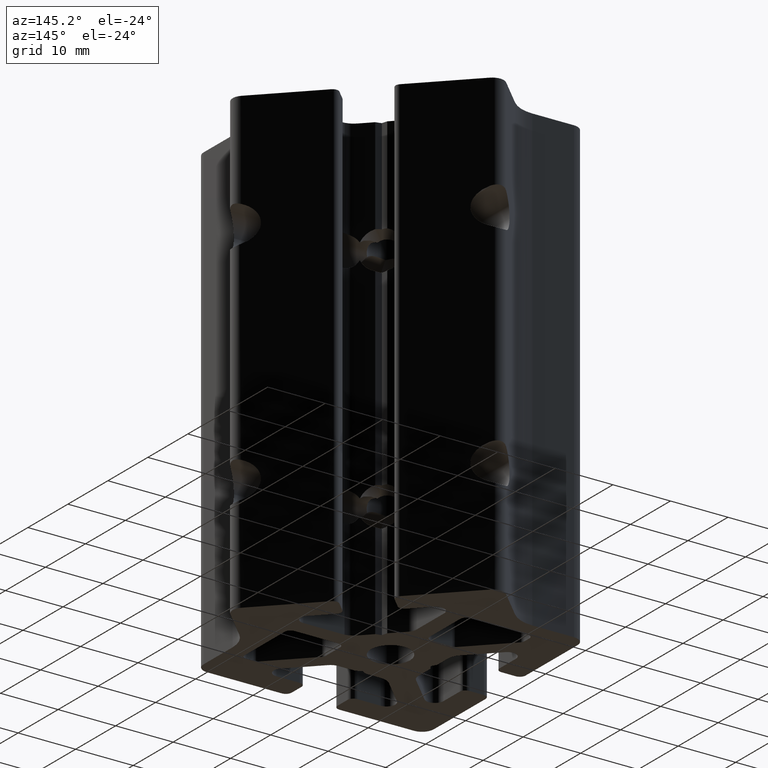
[diagram: clean part render]
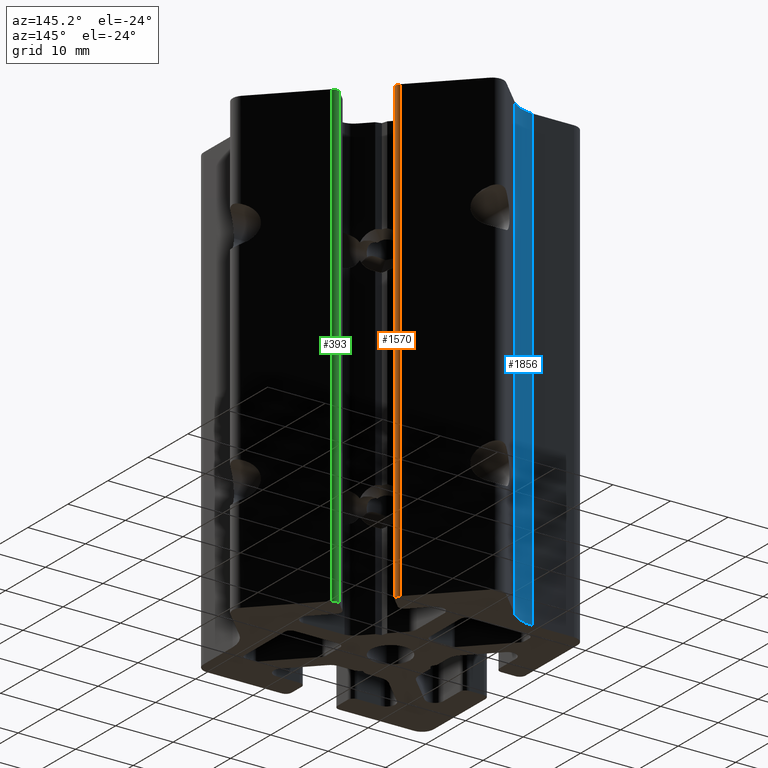
[diagram: same view with three faces highlighted in distinct colors, each labeled with its STEP entity id]
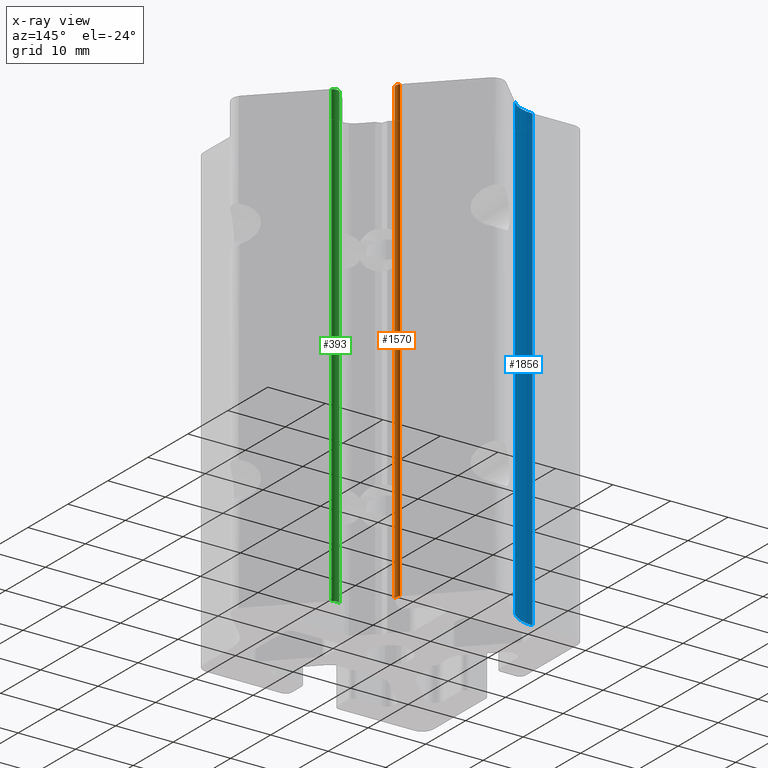
[diagram: x-ray of the same camera — body ghosted, the three highlighted faces saturated]
A machine part, auxiliary view with three faces highlighted in distinct colors.
The next image is the same camera in x-ray (body ghosted, the three faces saturated) — at least one of them is partly hidden behind the body in this view.
Their STEP definitions:

[orange] entity #1570 — the highlighted cylindrical surface (edge-blend (fillet) strip) has radius 0.9978 mm, axis along (0, 0, 1).
#1513=CARTESIAN_POINT('',(10.611185521892367,16.267987897816056,0.0));
#1514=VERTEX_POINT('',#1513);
#1521=CARTESIAN_POINT('',(10.611185521892367,16.267987897816056,79.999715220555601));
#1522=VERTEX_POINT('',#1521);
#1523=CARTESIAN_POINT('',(10.611185521892367,16.267987897816056,79.999715220555601));
#1524=DIRECTION('',(0.0,0.0,-1.0));
#1525=VECTOR('',#1524,79.999715220555601);
#1526=LINE('',#1523,#1525);
#1527=EDGE_CURVE('',#1522,#1514,#1526,.T.);
#1538=CARTESIAN_POINT('',(9.905607062647960,16.973568640208669,79.999715220555601));
#1539=DIRECTION('',(0.0,0.0,1.0));
#1540=DIRECTION('',(0.707105637140658,-0.707107925230587,0.0));
#1541=AXIS2_PLACEMENT_3D('',#1538,#1539,#1540);
#1542=CYLINDRICAL_SURFACE('',#1541,0.997840240812344);
#1543=ORIENTED_EDGE('',*,*,#1527,.T.);
#1544=CARTESIAN_POINT('',(10.611186443518363,17.679148460976648,0.0));
#1545=VERTEX_POINT('',#1544);
#1546=CARTESIAN_POINT('',(9.905607062647958,16.973568640208665,0.0));
#1547=DIRECTION('',(0.0,0.0,1.0));
#1548=DIRECTION('',(0.707106560761660,0.707107001611366,0.0));
#1549=AXIS2_PLACEMENT_3D('',#1546,#1547,#1548);
#1550=CIRCLE('',#1549,0.997840240812344);
#1551=EDGE_CURVE('',#1514,#1545,#1550,.T.);
#1552=ORIENTED_EDGE('',*,*,#1551,.T.);
#1553=CARTESIAN_POINT('',(10.611186443518363,17.679148460976648,79.999715220555601));
#1554=VERTEX_POINT('',#1553);
#1555=CARTESIAN_POINT('',(10.611186443518363,17.679148460976648,79.999715220555601));
#1556=DIRECTION('',(0.0,0.0,-1.0));
#1557=VECTOR('',#1556,79.999715220555601);
#1558=LINE('',#1555,#1557);
#1559=EDGE_CURVE('',#1554,#1545,#1558,.T.);
#1560=ORIENTED_EDGE('',*,*,#1559,.F.);
#1561=CARTESIAN_POINT('',(9.905607062647958,16.973568640208665,79.999715220555601));
#1562=DIRECTION('',(0.0,0.0,1.0));
#1563=DIRECTION('',(0.707106560761660,0.707107001611366,0.0));
#1564=AXIS2_PLACEMENT_3D('',#1561,#1562,#1563);
#1565=CIRCLE('',#1564,0.997840240812344);
#1566=EDGE_CURVE('',#1522,#1554,#1565,.T.);
#1567=ORIENTED_EDGE('',*,*,#1566,.F.);
#1568=EDGE_LOOP('',(#1543,#1552,#1560,#1567));
#1569=FACE_OUTER_BOUND('',#1568,.T.);
#1570=ADVANCED_FACE('',(#1569),#1542,.T.);

[blue] entity #1856 — the highlighted cylindrical surface (partial cylindrical patch) has radius 6 mm, axis along (0, 0, -1).
#1799=CARTESIAN_POINT('',(-6.526904061647201,21.757326569204906,0.0));
#1800=VERTEX_POINT('',#1799);
#1807=CARTESIAN_POINT('',(-6.526904061647201,21.757326569204906,79.999715220555601));
#1808=VERTEX_POINT('',#1807);
#1809=CARTESIAN_POINT('',(-6.526904061647201,21.757326569204906,79.999715220555601));
#1810=DIRECTION('',(0.0,0.0,-1.0));
#1811=VECTOR('',#1810,79.999715220555601);
#1812=LINE('',#1809,#1811);
#1813=EDGE_CURVE('',#1808,#1800,#1812,.T.);
#1824=CARTESIAN_POINT('',(-10.769525039279415,25.999990257382706,79.999715220555601));
#1825=DIRECTION('',(0.0,0.0,-1.0));
#1826=DIRECTION('',(0.707103221966839,-0.707110340388341,0.0));
#1827=AXIS2_PLACEMENT_3D('',#1824,#1825,#1826);
#1828=CYLINDRICAL_SURFACE('',#1827,6.000002327568382);
#1829=ORIENTED_EDGE('',*,*,#1813,.T.);
#1830=CARTESIAN_POINT('',(-10.769525039279415,19.999987929814324,0.0));
#1831=VERTEX_POINT('',#1830);
#1832=CARTESIAN_POINT('',(-10.769525039279415,25.999990257382706,0.0));
#1833=DIRECTION('',(0.0,0.0,-1.0));
#1834=DIRECTION('',(0.0,-1.0,0.0));
#1835=AXIS2_PLACEMENT_3D('',#1832,#1833,#1834);
#1836=CIRCLE('',#1835,6.000002327568382);
#1837=EDGE_CURVE('',#1800,#1831,#1836,.T.);
#1838=ORIENTED_EDGE('',*,*,#1837,.T.);
#1839=CARTESIAN_POINT('',(-10.769525039279415,19.999987929814324,79.999715220555601));
#1840=VERTEX_POINT('',#1839);
#1841=CARTESIAN_POINT('',(-10.769525039279415,19.999987929814324,79.999715220555601));
#1842=DIRECTION('',(0.0,0.0,-1.0));
#1843=VECTOR('',#1842,79.999715220555601);
#1844=LINE('',#1841,#1843);
#1845=EDGE_CURVE('',#1840,#1831,#1844,.T.);
#1846=ORIENTED_EDGE('',*,*,#1845,.F.);
#1847=CARTESIAN_POINT('',(-10.769525039279415,25.999990257382706,79.999715220555601));
#1848=DIRECTION('',(0.0,0.0,-1.0));
#1849=DIRECTION('',(0.0,-1.0,0.0));
#1850=AXIS2_PLACEMENT_3D('',#1847,#1848,#1849);
#1851=CIRCLE('',#1850,6.000002327568382);
#1852=EDGE_CURVE('',#1808,#1840,#1851,.T.);
#1853=ORIENTED_EDGE('',*,*,#1852,.F.);
#1854=EDGE_LOOP('',(#1829,#1838,#1846,#1853));
#1855=FACE_OUTER_BOUND('',#1854,.T.);
#1856=ADVANCED_FACE('',(#1855),#1828,.F.);

[green] entity #393 — the highlighted cylindrical surface (edge-blend (fillet) strip) has radius 0.9958 mm, axis along (0, 0, 1).
#336=CARTESIAN_POINT('',(17.682132614497277,10.608190095060309,0.0));
#337=VERTEX_POINT('',#336);
#344=CARTESIAN_POINT('',(17.682132614497277,10.608190095060309,79.999715220555601));
#345=VERTEX_POINT('',#344);
#346=CARTESIAN_POINT('',(17.682132614497277,10.608190095060309,79.999715220555601));
#347=DIRECTION('',(0.0,0.0,-1.0));
#348=VECTOR('',#347,79.999715220555601);
#349=LINE('',#346,#348);
#350=EDGE_CURVE('',#345,#337,#349,.T.);
#361=CARTESIAN_POINT('',(16.973625755238572,9.908510219913296,79.999715220555601));
#362=DIRECTION('',(0.0,0.0,1.0));
#363=DIRECTION('',(0.711525183838002,0.702660595710544,0.0));
#364=AXIS2_PLACEMENT_3D('',#361,#362,#363);
#365=CYLINDRICAL_SURFACE('',#364,0.995757951162019);
#366=ORIENTED_EDGE('',*,*,#350,.T.);
#367=CARTESIAN_POINT('',(16.269518555579452,10.612617419628350,0.0));
#368=VERTEX_POINT('',#367);
#369=CARTESIAN_POINT('',(16.973625755238572,9.908510219913296,0.0));
#370=DIRECTION('',(0.0,0.0,1.0));
#371=DIRECTION('',(-0.707106781158461,0.707106781214634,0.0));
#372=AXIS2_PLACEMENT_3D('',#369,#370,#371);
#373=CIRCLE('',#372,0.995757951162019);
#374=EDGE_CURVE('',#337,#368,#373,.T.);
#375=ORIENTED_EDGE('',*,*,#374,.T.);
#376=CARTESIAN_POINT('',(16.269518555579452,10.612617419628350,79.999715220555601));
#377=VERTEX_POINT('',#376);
#378=CARTESIAN_POINT('',(16.269518555579452,10.612617419628350,79.999715220555601));
#379=DIRECTION('',(0.0,0.0,-1.0));
#380=VECTOR('',#379,79.999715220555601);
#381=LINE('',#378,#380);
#382=EDGE_CURVE('',#377,#368,#381,.T.);
#383=ORIENTED_EDGE('',*,*,#382,.F.);
#384=CARTESIAN_POINT('',(16.973625755238572,9.908510219913296,79.999715220555601));
#385=DIRECTION('',(0.0,0.0,1.0));
#386=DIRECTION('',(-0.707106781158461,0.707106781214634,0.0));
#387=AXIS2_PLACEMENT_3D('',#384,#385,#386);
#388=CIRCLE('',#387,0.995757951162019);
#389=EDGE_CURVE('',#345,#377,#388,.T.);
#390=ORIENTED_EDGE('',*,*,#389,.F.);
#391=EDGE_LOOP('',(#366,#375,#383,#390));
#392=FACE_OUTER_BOUND('',#391,.T.);
#393=ADVANCED_FACE('',(#392),#365,.T.);